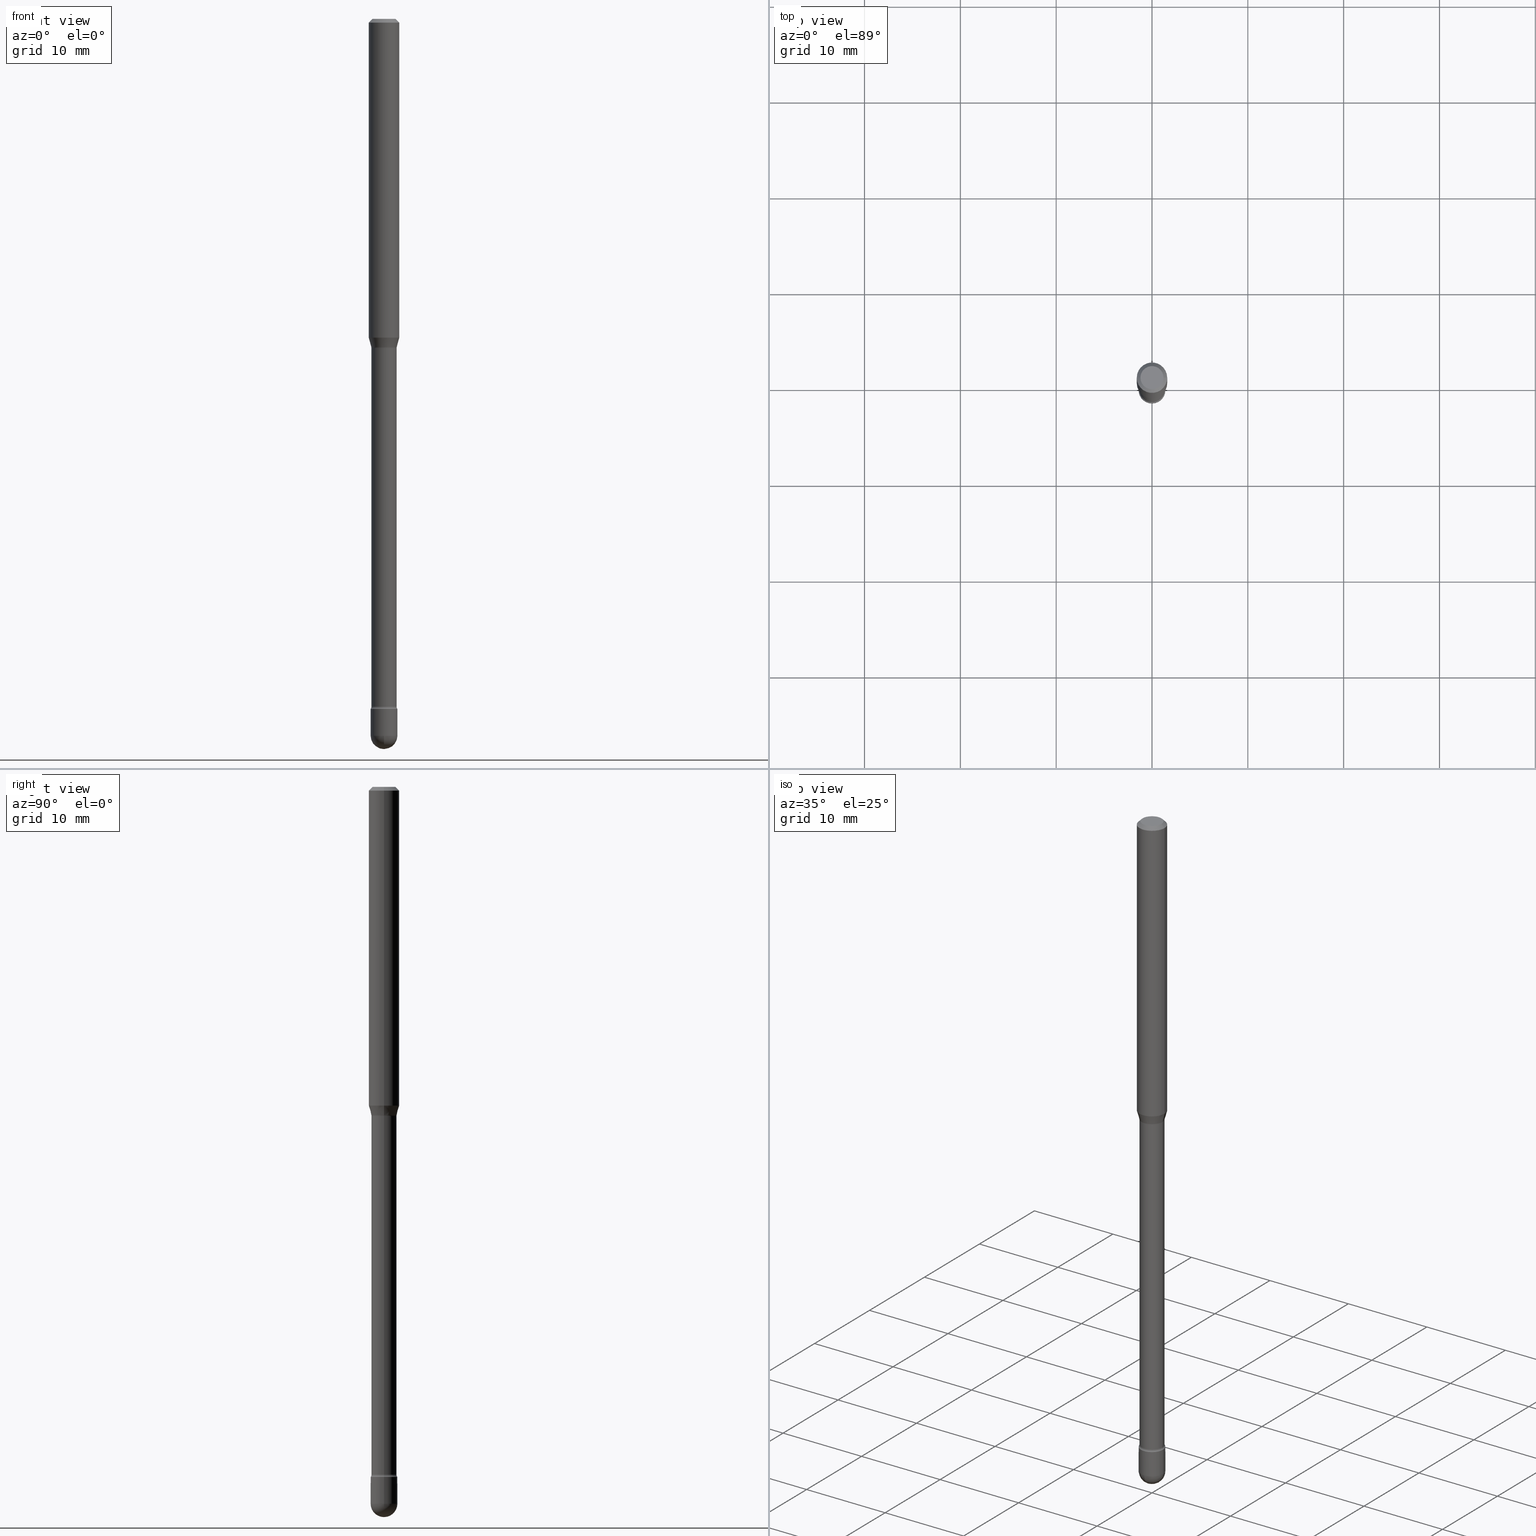
[diagram: canonical four-view strip — front | top / right | iso, engineering-drawing reading convention]
A machine part, canonical four-view strip (front | top / right | iso — engineering-drawing reading convention). The complete STEP part file that produces these views, byte-faithful:
ISO-10303-21;
HEADER;
FILE_DESCRIPTION (( 'STEP AP203' ),
    '1' );
FILE_NAME ('09575.STEP',
    '2024-04-10T00:57:56',
    ( '' ),
    ( '' ),
    'SwSTEP 2.0',
    'SolidWorks 2023',
    '' );
FILE_SCHEMA (( 'CONFIG_CONTROL_DESIGN' ));
ENDSEC;

DATA;
#1 = DIRECTION ( 'NONE',  ( -2.445468806185136877E-29, 3.491481338843145188E-15, 1.000000000000000000 ) ) ;
#2 = VERTEX_POINT ( 'NONE', #297 ) ;
#3 = APPROVAL_ROLE ( '' ) ;
#4 = ORIENTED_EDGE ( 'NONE', *, *, #347, .F. ) ;
#5 = CIRCLE ( 'NONE', #64, 0.01499999999999994220 ) ;
#6 = ADVANCED_FACE ( 'NONE', ( #254 ), #86, .T. ) ;
#7 = ORIENTED_EDGE ( 'NONE', *, *, #258, .T. ) ;
#8 = APPROVAL_STATUS ( 'not_yet_approved' ) ;
#9 = CARTESIAN_POINT ( 'NONE',  ( 7.201905634215227412E-29, -1.028241254289306465E-14, -2.945000000000000284 ) ) ;
#10 = EDGE_CURVE ( 'NONE', #73, #232, #383, .T. ) ;
#11 = PERSON_AND_ORGANIZATION ( #200, #53 ) ;
#12 = CARTESIAN_POINT ( 'NONE',  ( -0.06250000000000000000, -1.868482720859080812E-15, -0.01500000000000008271 ) ) ;
#13 = VERTEX_POINT ( 'NONE', #343 ) ;
#14 = PRODUCT_RELATED_PRODUCT_CATEGORY ( 'detail', '', ( #313 ) ) ;
#15 = CALENDAR_DATE ( 2024, 9, 4 ) ;
#16 = EDGE_CURVE ( 'NONE', #36, #512, #562, .T. ) ;
#17 = DIRECTION ( 'NONE',  ( -2.445468806185136597E-29, 3.491481338843145583E-15, 1.000000000000000000 ) ) ;
#18 = APPROVAL_STATUS ( 'not_yet_approved' ) ;
#19 = DIRECTION ( 'NONE',  ( -2.445468806185136597E-29, 3.491481338843145583E-15, 1.000000000000000000 ) ) ;
#20 = VECTOR ( 'NONE', #230, 39.37007874015748143 ) ;
#21 = ORIENTED_EDGE ( 'NONE', *, *, #16, .T. ) ;
#22 = CARTESIAN_POINT ( 'NONE',  ( 0.06670000000000017581, -1.033133974379752001E-14, -2.825613307291703347 ) ) ;
#23 = APPROVAL_DATE_TIME ( #281, #132 ) ;
#24 = CARTESIAN_POINT ( 'NONE',  ( 0.06250000000000000000, -5.009206808691031841E-15, -1.309693851278255883 ) ) ;
#25 = DIRECTION ( 'NONE',  ( -2.445468806185136597E-29, 3.491481338843145583E-15, 1.000000000000000000 ) ) ;
#26 = AXIS2_PLACEMENT_3D ( 'NONE', #22, #440, #317 ) ;
#27 = PRODUCT_DEFINITION ( 'UNKNOWN', '', #449, #61 ) ;
#28 = AXIS2_PLACEMENT_3D ( 'NONE', #303, #179, #463 ) ;
#29 = DIRECTION ( 'NONE',  ( 1.000000000000000000, -6.982962677686276177E-15, 0.000000000000000000 ) ) ;
#30 = ADVANCED_FACE ( 'NONE', ( #91 ), #263, .T. ) ;
#31 = EDGE_CURVE ( 'NONE', #560, #232, #65, .T. ) ;
#32 = DIRECTION ( 'NONE',  ( 6.982962677686265922E-15, 1.000000000000000000, 0.000000000000000000 ) ) ;
#33 = CARTESIAN_POINT ( 'NONE',  ( 6.932904065534862655E-29, -9.898349595620319665E-15, -2.835000000000000409 ) ) ;
#34 = EDGE_LOOP ( 'NONE', ( #212, #280, #450, #501 ) ) ;
#35 =( GEOMETRIC_REPRESENTATION_CONTEXT ( 3 ) GLOBAL_UNCERTAINTY_ASSIGNED_CONTEXT ( ( #167 ) ) GLOBAL_UNIT_ASSIGNED_CONTEXT ( ( #307, #187, #445 ) ) REPRESENTATION_CONTEXT ( 'NONE', 'WORKASPACE' ) );
#36 = VERTEX_POINT ( 'NONE', #346 ) ;
#37 = DIRECTION ( 'NONE',  ( -1.000000000000000000, 6.982962677686265922E-15, -4.883557194083112901E-29 ) ) ;
#38 = CIRCLE ( 'NONE', #28, 0.04749999999999999362 ) ;
#39 = ORIENTED_EDGE ( 'NONE', *, *, #16, .F. ) ;
#40 = ORIENTED_EDGE ( 'NONE', *, *, #460, .T. ) ;
#41 = CYLINDRICAL_SURFACE ( 'NONE', #182, 0.06250000000000000000 ) ;
#42 = DIRECTION ( 'NONE',  ( -2.445468806185136597E-29, 3.491481338843145583E-15, 1.000000000000000000 ) ) ;
#43 = ORIENTED_EDGE ( 'NONE', *, *, #411, .T. ) ;
#44 = DIRECTION ( 'NONE',  ( -2.445468806185136597E-29, 3.491481338843145583E-15, 1.000000000000000000 ) ) ;
#45 = ORIENTED_EDGE ( 'NONE', *, *, #388, .F. ) ;
#46 = DIRECTION ( 'NONE',  ( 6.982962677686265922E-15, 1.000000000000000000, 0.000000000000000000 ) ) ;
#47 = DIRECTION ( 'NONE',  ( -1.000000000000000000, 6.982962677686266711E-15, 0.000000000000000000 ) ) ;
#48 = LINE ( 'NONE', #217, #150 ) ;
#49 = CARTESIAN_POINT ( 'NONE',  ( 0.06250000000000000000, -4.364351673553899931E-16, 4.780733988912490708E-16 ) ) ;
#50 = PERSON_AND_ORGANIZATION_ROLE ( 'creator' ) ;
#51 = DIRECTION ( 'NONE',  ( 1.000000000000000000, -6.982962677686269866E-15, 4.883557194083114022E-29 ) ) ;
#52 = AXIS2_PLACEMENT_3D ( 'NONE', #195, #242, #309 ) ;
#53 = ORGANIZATION ( 'UNSPECIFIED', 'UNSPECIFIED', '' ) ;
#54 = PERSON_AND_ORGANIZATION_ROLE ( 'design_owner' ) ;
#55 = PLANE ( 'NONE',  #52 ) ;
#56 = EDGE_CURVE ( 'NONE', #332, #171, #523, .T. ) ;
#57 = ORIENTED_EDGE ( 'NONE', *, *, #468, .T. ) ;
#58 = DATE_AND_TIME ( #308, #543 ) ;
#59 = CARTESIAN_POINT ( 'NONE',  ( -0.06669999999999999540, -4.246462736264336838E-15, -1.351974787463810834 ) ) ;
#60 = AXIS2_PLACEMENT_3D ( 'NONE', #245, #246, #75 ) ;
#61 = DESIGN_CONTEXT ( 'detailed design', #547, 'design' ) ;
#62 = CALENDAR_DATE ( 2024, 9, 4 ) ;
#63 = DIRECTION ( 'NONE',  ( 0.2588190451025198513, 1.565188264969633801E-15, 0.9659258262890685343 ) ) ;
#64 = AXIS2_PLACEMENT_3D ( 'NONE', #415, #329, #209 ) ;
#65 = CIRCLE ( 'NONE', #421, 0.05500000000000000028 ) ;
#66 = CARTESIAN_POINT ( 'NONE',  ( -0.04749999999999999362, 3.578768372314208041E-16, -8.274703207154778150E-17 ) ) ;
#67 = CIRCLE ( 'NONE', #241, 0.05500000000000000028 ) ;
#68 = FACE_OUTER_BOUND ( 'NONE', #292, .T. ) ;
#69 = EDGE_CURVE ( 'NONE', #341, #479, #478, .T. ) ;
#70 = DIRECTION ( 'NONE',  ( 1.000000000000000000, -6.982962677686261189E-15, 0.000000000000000000 ) ) ;
#71 = ORIENTED_EDGE ( 'NONE', *, *, #455, .F. ) ;
#72 = CARTESIAN_POINT ( 'NONE',  ( -1.169113584055446105E-44, 1.669184350826100908E-30, 4.780733988912460139E-16 ) ) ;
#73 = VERTEX_POINT ( 'NONE', #181 ) ;
#74 = VECTOR ( 'NONE', #302, 39.37007874015748143 ) ;
#75 = DIRECTION ( 'NONE',  ( 1.000000000000000000, -6.982962677686279332E-15, 0.000000000000000000 ) ) ;
#76 = ORIENTED_EDGE ( 'NONE', *, *, #196, .F. ) ;
#77 = DIRECTION ( 'NONE',  ( 1.000000000000000000, -6.982962677686276177E-15, 0.000000000000000000 ) ) ;
#78 = ORIENTED_EDGE ( 'NONE', *, *, #126, .F. ) ;
#79 = DIRECTION ( 'NONE',  ( -6.982962677686266711E-15, -1.000000000000000000, 3.491481338843145583E-15 ) ) ;
#80 = ORIENTED_EDGE ( 'NONE', *, *, #69, .F. ) ;
#81 = LOCAL_TIME ( 20, 57, 56.00000000000000000, #183 ) ;
#82 = EDGE_LOOP ( 'NONE', ( #558, #40, #320, #80 ) ) ;
#83 = AXIS2_PLACEMENT_3D ( 'NONE', #213, #380, #555 ) ;
#84 = EDGE_LOOP ( 'NONE', ( #78, #529, #43, #88 ) ) ;
#85 = CARTESIAN_POINT ( 'NONE',  ( 3.306212169491528770E-29, -4.720394741016323531E-15, -1.351974787463810834 ) ) ;
#86 = CYLINDRICAL_SURFACE ( 'NONE', #376, 0.05170000000000010698 ) ;
#87 = LINE ( 'NONE', #340, #243 ) ;
#88 = ORIENTED_EDGE ( 'NONE', *, *, #293, .T. ) ;
#89 = VERTEX_POINT ( 'NONE', #348 ) ;
#90 = CARTESIAN_POINT ( 'NONE',  ( 0.04749999999999999362, -4.035134999187581581E-16, -8.274703207154280181E-17 ) ) ;
#91 = FACE_OUTER_BOUND ( 'NONE', #266, .T. ) ;
#92 = CIRCLE ( 'NONE', #270, 0.05169999999999998902 ) ;
#93 = EDGE_CURVE ( 'NONE', #528, #479, #526, .T. ) ;
#94 = DIRECTION ( 'NONE',  ( -2.445468806185136597E-29, 3.491481338843145583E-15, 1.000000000000000000 ) ) ;
#95 = LOCAL_TIME ( 20, 57, 56.00000000000000000, #324 ) ;
#96 = CARTESIAN_POINT ( 'NONE',  ( -0.05500000000000000028, 3.907985046680551042E-16, -2.705414299640198362E-30 ) ) ;
#97 = EDGE_CURVE ( 'NONE', #99, #479, #102, .T. ) ;
#98 = DIRECTION ( 'NONE',  ( 0.7071067811865475727, -7.319954787623256045E-15, -0.7071067811865474617 ) ) ;
#99 = VERTEX_POINT ( 'NONE', #12 ) ;
#100 = PERSON_AND_ORGANIZATION ( #200, #53 ) ;
#101 = DIRECTION ( 'NONE',  ( 1.000000000000000000, -6.982962677686266711E-15, 4.876176775795935793E-29 ) ) ;
#102 = CIRCLE ( 'NONE', #288, 0.06250000000000000000 ) ;
#103 = DIRECTION ( 'NONE',  ( 1.000000000000000000, 0.000000000000000000, 0.000000000000000000 ) ) ;
#104 = CARTESIAN_POINT ( 'NONE',  ( 0.06250000000000000000, -4.811533449433681963E-16, -0.01500000000000008271 ) ) ;
#105 = ORIENTED_EDGE ( 'NONE', *, *, #196, .T. ) ;
#106 = CONICAL_SURFACE ( 'NONE', #186, 0.06250000000000000000, 0.7853981633974483900 ) ;
#107 = VECTOR ( 'NONE', #160, 39.37007874015748143 ) ;
#108 = PERSON_AND_ORGANIZATION ( #200, #53 ) ;
#109 = CARTESIAN_POINT ( 'NONE',  ( 6.932904065534862655E-29, -9.898349595620319665E-15, -2.835000000000000409 ) ) ;
#110 = APPROVAL_ROLE ( '' ) ;
#111 = CARTESIAN_POINT ( 'NONE',  ( 6.909949201323477273E-29, -9.865576133195845499E-15, -2.825613307291703347 ) ) ;
#112 = CALENDAR_DATE ( 2024, 9, 4 ) ;
#113 = DIRECTION ( 'NONE',  ( -1.000000000000000000, 6.982962677686265922E-15, -4.883557194083112901E-29 ) ) ;
#114 = ORIENTED_EDGE ( 'NONE', *, *, #199, .T. ) ;
#115 = CARTESIAN_POINT ( 'NONE',  ( 3.668203209277725232E-31, -5.237222008264747365E-17, -0.01500000000000008271 ) ) ;
#116 = DIMENSIONAL_EXPONENTS ( 1.000000000000000000, 0.000000000000000000, 0.000000000000000000, 0.000000000000000000, 0.000000000000000000, 0.000000000000000000, 0.000000000000000000 ) ;
#117 = DIRECTION ( 'NONE',  ( -2.445468806185136597E-29, 3.491481338843145583E-15, 1.000000000000000000 ) ) ;
#118 = CC_DESIGN_DATE_AND_TIME_ASSIGNMENT ( #443, #190, ( #469 ) ) ;
#119 = EDGE_CURVE ( 'NONE', #13, #73, #498, .T. ) ;
#120 = CARTESIAN_POINT ( 'NONE',  ( 7.201905634215227412E-29, -1.028241254289306465E-14, -2.945000000000000284 ) ) ;
#121 = ORIENTED_EDGE ( 'NONE', *, *, #177, .T. ) ;
#122 = TOROIDAL_SURFACE ( 'NONE', #448, 0.06670000000000017581, 0.01499999999999993526 ) ;
#123 = AXIS2_PLACEMENT_3D ( 'NONE', #441, #482, #103 ) ;
#124 = CIRCLE ( 'NONE', #306, 0.06250000000000000000 ) ;
#125 = CARTESIAN_POINT ( 'NONE',  ( 3.296718160972856588E-29, -4.706839813024632944E-15, -1.348092501787272912 ) ) ;
#126 = EDGE_CURVE ( 'NONE', #332, #512, #358, .T. ) ;
#127 = DIRECTION ( 'NONE',  ( -2.445468806185136597E-29, 3.491481338843145583E-15, 1.000000000000000000 ) ) ;
#128 = CARTESIAN_POINT ( 'NONE',  ( 6.932904065534862655E-29, -9.898349595620319665E-15, -2.835000000000000409 ) ) ;
#129 = EDGE_LOOP ( 'NONE', ( #224, #524, #344, #45, #256 ) ) ;
#130 = VERTEX_POINT ( 'NONE', #145 ) ;
#131 = CARTESIAN_POINT ( 'NONE',  ( 0.06250000000000000000, -4.888073874380391431E-16, -0.01500000000000008271 ) ) ;
#132 = APPROVAL ( #18, 'UNSPECIFIED' ) ;
#133 = ORIENTED_EDGE ( 'NONE', *, *, #406, .F. ) ;
#134 = CARTESIAN_POINT ( 'NONE',  ( 7.201905634215227412E-29, -1.028241254289306465E-14, -2.945000000000000284 ) ) ;
#135 = ORIENTED_EDGE ( 'NONE', *, *, #429, .F. ) ;
#136 = ADVANCED_FACE ( 'NONE', ( #496 ), #532, .T. ) ;
#137 = DIRECTION ( 'NONE',  ( -2.445468806185136597E-29, 3.491481338843145583E-15, 1.000000000000000000 ) ) ;
#138 = CARTESIAN_POINT ( 'NONE',  ( -0.05221111260566397433, -4.335857545145562056E-15, -1.348092501787272912 ) ) ;
#139 = AXIS2_PLACEMENT_3D ( 'NONE', #59, #267, #442 ) ;
#140 = APPROVAL_PERSON_ORGANIZATION ( #108, #257, #3 ) ;
#141 = CALENDAR_DATE ( 2024, 9, 4 ) ;
#142 = ORIENTED_EDGE ( 'NONE', *, *, #93, .T. ) ;
#143 = CIRCLE ( 'NONE', #174, 0.01500000000000002720 ) ;
#144 = APPROVAL_DATE_TIME ( #58, #257 ) ;
#145 = CARTESIAN_POINT ( 'NONE',  ( 0.05500000000000000028, -1.047444401652943635E-14, -2.945000000000000284 ) ) ;
#146 = FACE_OUTER_BOUND ( 'NONE', #84, .T. ) ;
#147 = EDGE_LOOP ( 'NONE', ( #565, #176 ) ) ;
#148 = AXIS2_PLACEMENT_3D ( 'NONE', #517, #262, #47 ) ;
#149 = DIRECTION ( 'NONE',  ( 1.000000000000000000, -6.982962677686274599E-15, 4.883557194083115143E-29 ) ) ;
#150 = VECTOR ( 'NONE', #1, 39.37007874015748143 ) ;
#151 = CARTESIAN_POINT ( 'NONE',  ( 0.000000000000000000, 0.000000000000000000, 0.000000000000000000 ) ) ;
#152 = ORIENTED_EDGE ( 'NONE', *, *, #154, .T. ) ;
#153 = ORIENTED_EDGE ( 'NONE', *, *, #460, .F. ) ;
#154 = EDGE_CURVE ( 'NONE', #549, #375, #192, .T. ) ;
#155 = DIRECTION ( 'NONE',  ( 1.000000000000000000, -6.982962677686276177E-15, 0.000000000000000000 ) ) ;
#156 = CARTESIAN_POINT ( 'NONE',  ( 3.306212169491528770E-29, -4.720394741016323531E-15, -1.351974787463810834 ) ) ;
#157 = APPROVAL_PERSON_ORGANIZATION ( #495, #515, #110 ) ;
#158 = AXIS2_PLACEMENT_3D ( 'NONE', #500, #117, #548 ) ;
#159 = SPHERICAL_SURFACE ( 'NONE', #203, 0.05499999999999991007 ) ;
#160 = DIRECTION ( 'NONE',  ( -2.445468806185136877E-29, 3.491481338843145188E-15, 1.000000000000000000 ) ) ;
#161 = VERTEX_POINT ( 'NONE', #239 ) ;
#162 = DIRECTION ( 'NONE',  ( -2.445468806185136597E-29, 3.491481338843145583E-15, 1.000000000000000000 ) ) ;
#163 = AXIS2_PLACEMENT_3D ( 'NONE', #420, #454, #201 ) ;
#164 = ADVANCED_FACE ( 'NONE', ( #235 ), #55, .F. ) ;
#165 = APPROVAL_PERSON_ORGANIZATION ( #407, #132, #318 ) ;
#166 = CARTESIAN_POINT ( 'NONE',  ( 6.909949201323477273E-29, -9.865576133195845499E-15, -2.825613307291703347 ) ) ;
#167 = UNCERTAINTY_MEASURE_WITH_UNIT (LENGTH_MEASURE( 1.000000000000000082E-05 ), #307, 'distance_accuracy_value', 'NONE');
#168 = ADVANCED_FACE ( 'NONE', ( #269 ), #538, .T. ) ;
#169 = FACE_OUTER_BOUND ( 'NONE', #34, .T. ) ;
#170 = ORIENTED_EDGE ( 'NONE', *, *, #258, .F. ) ;
#171 = VERTEX_POINT ( 'NONE', #438 ) ;
#172 = DIRECTION ( 'NONE',  ( 1.000000000000000000, -6.982962677686266711E-15, 4.852736867747366207E-29 ) ) ;
#173 = ORIENTED_EDGE ( 'NONE', *, *, #370, .F. ) ;
#174 = AXIS2_PLACEMENT_3D ( 'NONE', #522, #79, #519 ) ;
#175 = FACE_OUTER_BOUND ( 'NONE', #436, .T. ) ;
#176 = ORIENTED_EDGE ( 'NONE', *, *, #429, .T. ) ;
#177 = EDGE_CURVE ( 'NONE', #375, #161, #322, .T. ) ;
#178 = ORIENTED_EDGE ( 'NONE', *, *, #455, .T. ) ;
#179 = DIRECTION ( 'NONE',  ( -2.445468806185136597E-29, 3.491481338843145583E-15, 1.000000000000000000 ) ) ;
#180 = DIRECTION ( 'NONE',  ( 1.000000000000000000, -6.982962677686279332E-15, 0.000000000000000000 ) ) ;
#181 = CARTESIAN_POINT ( 'NONE',  ( -0.05500000000000000028, -9.699582564588636708E-15, -2.945000000000000284 ) ) ;
#182 = AXIS2_PLACEMENT_3D ( 'NONE', #561, #427, #172 ) ;
#183 = COORDINATED_UNIVERSAL_TIME_OFFSET ( 5, 0, .BEHIND. ) ;
#184 = DIRECTION ( 'NONE',  ( -2.438088387897960049E-29, 3.491481338843145188E-15, 1.000000000000000000 ) ) ;
#185 = ORIENTED_EDGE ( 'NONE', *, *, #339, .T. ) ;
#186 = AXIS2_PLACEMENT_3D ( 'NONE', #540, #291, #452 ) ;
#187 =( NAMED_UNIT ( * ) PLANE_ANGLE_UNIT ( ) SI_UNIT ( $, .RADIAN. ) );
#188 = CARTESIAN_POINT ( 'NONE',  ( -3.907985046679827755E-16, -0.05500000000001023515, -2.945000000000000284 ) ) ;
#189 = CC_DESIGN_PERSON_AND_ORGANIZATION_ASSIGNMENT ( #100, #404, ( #449 ) ) ;
#190 = DATE_TIME_ROLE ( 'classification_date' ) ;
#191 = DIRECTION ( 'NONE',  ( -2.445468806185136597E-29, 3.491481338843145583E-15, 1.000000000000000000 ) ) ;
#192 = CIRCLE ( 'NONE', #26, 0.01499999999999994220 ) ;
#193 = ORIENTED_EDGE ( 'NONE', *, *, #397, .T. ) ;
#194 = VERTEX_POINT ( 'NONE', #188 ) ;
#195 = CARTESIAN_POINT ( 'NONE',  ( 3.840629472728140100E-16, 0.05499999999999010541, -2.835000000000000409 ) ) ;
#196 = EDGE_CURVE ( 'NONE', #260, #99, #198, .T. ) ;
#197 = AXIS2_PLACEMENT_3D ( 'NONE', #166, #227, #474 ) ;
#198 = LINE ( 'NONE', #355, #395 ) ;
#199 = EDGE_CURVE ( 'NONE', #556, #341, #362, .T. ) ;
#200 = PERSON ( 'UNSPECIFIED', 'UNSPECIFIED', 'UNSPECIFIED', ('UNSPECIFIED'), ('UNSPECIFIED'), ('UNSPECIFIED') ) ;
#201 = DIRECTION ( 'NONE',  ( -1.000000000000000000, 6.982962677686265922E-15, -4.876176775795935793E-29 ) ) ;
#202 = CC_DESIGN_PERSON_AND_ORGANIZATION_ASSIGNMENT ( #391, #54, ( #313 ) ) ;
#203 = AXIS2_PLACEMENT_3D ( 'NONE', #120, #113, #285 ) ;
#204 = DIRECTION ( 'NONE',  ( -2.445468806185136597E-29, 3.491481338843145583E-15, 1.000000000000000000 ) ) ;
#205 = CIRCLE ( 'NONE', #361, 0.05500000000000000028 ) ;
#206 = CARTESIAN_POINT ( 'NONE',  ( 6.909949201323477273E-29, -9.865576133195845499E-15, -2.825613307291703347 ) ) ;
#207 = EDGE_LOOP ( 'NONE', ( #135, #142, #251, #76 ) ) ;
#208 = FACE_OUTER_BOUND ( 'NONE', #147, .T. ) ;
#209 = DIRECTION ( 'NONE',  ( -1.000000000000000000, 7.105427357601017636E-15, 0.000000000000000000 ) ) ;
#210 = CIRCLE ( 'NONE', #431, 0.05500000000000000028 ) ;
#211 = CONICAL_SURFACE ( 'NONE', #336, 0.05221111260566397433, 0.2617993877991485197 ) ;
#212 = ORIENTED_EDGE ( 'NONE', *, *, #527, .F. ) ;
#213 = CARTESIAN_POINT ( 'NONE',  ( 3.296718160972856588E-29, -4.706839813024632944E-15, -1.348092501787272912 ) ) ;
#214 = ORIENTED_EDGE ( 'NONE', *, *, #468, .F. ) ;
#215 = CIRCLE ( 'NONE', #371, 0.05169999999999998902 ) ;
#216 = PRODUCT_DEFINITION_SHAPE ( 'NONE', 'NONE',  #27 ) ;
#217 = CARTESIAN_POINT ( 'NONE',  ( -0.06250000000000000000, 4.440892098500642925E-16, 4.780733988912429571E-16 ) ) ;
#218 = DIRECTION ( 'NONE',  ( 1.000000000000000000, -6.982962677686266711E-15, 4.927827573631261358E-29 ) ) ;
#219 = CC_DESIGN_PERSON_AND_ORGANIZATION_ASSIGNMENT ( #11, #234, ( #469 ) ) ;
#220 = ORIENTED_EDGE ( 'NONE', *, *, #424, .T. ) ;
#221 = ADVANCED_FACE ( 'NONE', ( #146 ), #368, .F. ) ;
#222 = ORIENTED_EDGE ( 'NONE', *, *, #199, .F. ) ;
#223 = DIRECTION ( 'NONE',  ( 1.000000000000000000, -6.982962677686266711E-15, 4.876176775795935793E-29 ) ) ;
#224 = ORIENTED_EDGE ( 'NONE', *, *, #119, .T. ) ;
#225 = CLOSED_SHELL ( 'NONE', ( #534, #6, #238, #333, #290, #398, #325, #551, #30, #305, #164, #494, #338, #221 ) ) ;
#226 = AXIS2_PLACEMENT_3D ( 'NONE', #476, #94, #422 ) ;
#227 = DIRECTION ( 'NONE',  ( -2.445468806185136597E-29, 3.491481338843145583E-15, 1.000000000000000000 ) ) ;
#228 = CARTESIAN_POINT ( 'NONE',  ( 6.932904065534862655E-29, -9.898349595620319665E-15, -2.835000000000000409 ) ) ;
#229 = DIRECTION ( 'NONE',  ( -1.000000000000000000, 7.105427357601001070E-15, -4.926315508542082329E-29 ) ) ;
#230 = DIRECTION ( 'NONE',  ( -2.445468806185136877E-29, 3.491481338843145188E-15, 1.000000000000000000 ) ) ;
#231 = DATE_AND_TIME ( #141, #399 ) ;
#232 = VERTEX_POINT ( 'NONE', #273 ) ;
#233 = CIRCLE ( 'NONE', #334, 0.05170000000000023882 ) ;
#234 = PERSON_AND_ORGANIZATION_ROLE ( 'classification_officer' ) ;
#235 = FACE_OUTER_BOUND ( 'NONE', #490, .T. ) ;
#236 = DATE_AND_TIME ( #62, #81 ) ;
#237 = CARTESIAN_POINT ( 'NONE',  ( 6.909949201323477273E-29, -9.865576133195845499E-15, -2.825613307291703347 ) ) ;
#238 = ADVANCED_FACE ( 'NONE', ( #357 ), #122, .F. ) ;
#239 = CARTESIAN_POINT ( 'NONE',  ( -0.05499999999999995864, -9.507551090952265005E-15, -2.835000000000000409 ) ) ;
#240 = ORIENTED_EDGE ( 'NONE', *, *, #119, .F. ) ;
#241 = AXIS2_PLACEMENT_3D ( 'NONE', #503, #162, #413 ) ;
#242 = DIRECTION ( 'NONE',  ( -2.438088387897960049E-29, 3.491481338843145188E-15, 1.000000000000000000 ) ) ;
#243 = VECTOR ( 'NONE', #252, 39.37007874015748143 ) ;
#244 = DIRECTION ( 'NONE',  ( 1.000000000000000000, -6.982962677686266711E-15, 4.852736867747366207E-29 ) ) ;
#245 = CARTESIAN_POINT ( 'NONE',  ( 7.201905634215227412E-29, -1.028241254289306465E-14, -2.945000000000000284 ) ) ;
#246 = DIRECTION ( 'NONE',  ( -2.445468806185136597E-29, 3.491481338843145583E-15, 1.000000000000000000 ) ) ;
#247 = ORIENTED_EDGE ( 'NONE', *, *, #352, .T. ) ;
#248 = CARTESIAN_POINT ( 'NONE',  ( 7.201905634215227412E-29, -1.028241254289306465E-14, -2.945000000000000284 ) ) ;
#249 = EDGE_CURVE ( 'NONE', #130, #13, #210, .T. ) ;
#250 = LINE ( 'NONE', #289, #107 ) ;
#251 = ORIENTED_EDGE ( 'NONE', *, *, #365, .T. ) ;
#252 = DIRECTION ( 'NONE',  ( -2.445468806185136877E-29, 3.491481338843145188E-15, 1.000000000000000000 ) ) ;
#253 = AXIS2_PLACEMENT_3D ( 'NONE', #488, #184, #401 ) ;
#254 = FACE_OUTER_BOUND ( 'NONE', #271, .T. ) ;
#255 = DIRECTION ( 'NONE',  ( -2.445468806185136597E-29, 3.491481338843145583E-15, 1.000000000000000000 ) ) ;
#256 = ORIENTED_EDGE ( 'NONE', *, *, #249, .T. ) ;
#257 = APPROVAL ( #349, 'UNSPECIFIED' ) ;
#258 = EDGE_CURVE ( 'NONE', #549, #36, #233, .T. ) ;
#259 = CARTESIAN_POINT ( 'NONE',  ( 2.023552857353652888E-45, -2.889097183224559242E-31, -8.274703207154537794E-17 ) ) ;
#260 = VERTEX_POINT ( 'NONE', #66 ) ;
#261 = FACE_OUTER_BOUND ( 'NONE', #301, .T. ) ;
#262 = DIRECTION ( 'NONE',  ( 2.445468806185136597E-29, -3.491481338843145583E-15, -1.000000000000000000 ) ) ;
#263 = CONICAL_SURFACE ( 'NONE', #148, 0.06250000000000000000, 0.7853981633974483900 ) ;
#264 = AXIS2_PLACEMENT_3D ( 'NONE', #85, #255, #425 ) ;
#265 = FACE_OUTER_BOUND ( 'NONE', #557, .T. ) ;
#266 = EDGE_LOOP ( 'NONE', ( #520, #379, #105, #464 ) ) ;
#267 = DIRECTION ( 'NONE',  ( 7.105427357601001859E-15, 1.000000000000000000, -3.491481338843145583E-15 ) ) ;
#268 = MECHANICAL_CONTEXT ( 'NONE', #518, 'mechanical' ) ;
#269 = FACE_OUTER_BOUND ( 'NONE', #353, .T. ) ;
#270 = AXIS2_PLACEMENT_3D ( 'NONE', #458, #418, #155 ) ;
#271 = EDGE_LOOP ( 'NONE', ( #7, #21, #381, #546 ) ) ;
#272 = CIRCLE ( 'NONE', #409, 0.05499999999999991007 ) ;
#273 = CARTESIAN_POINT ( 'NONE',  ( -0.05500000000000000028, -9.699582564588636708E-15, -2.835000000000000409 ) ) ;
#274 = ADVANCED_FACE ( 'NONE', ( #410 ), #159, .T. ) ;
#275 = SECURITY_CLASSIFICATION_LEVEL ( 'unclassified' ) ;
#276 = CARTESIAN_POINT ( 'NONE',  ( 7.201905634215227412E-29, -1.028241254289306465E-14, -2.945000000000000284 ) ) ;
#277 = ORIENTED_EDGE ( 'NONE', *, *, #97, .F. ) ;
#278 = APPROVAL_DATE_TIME ( #236, #515 ) ;
#279 = DIRECTION ( 'NONE',  ( -2.445468806185136597E-29, 3.491481338843145583E-15, 1.000000000000000000 ) ) ;
#280 = ORIENTED_EDGE ( 'NONE', *, *, #126, .T. ) ;
#281 = DATE_AND_TIME ( #112, #95 ) ;
#282 = DIRECTION ( 'NONE',  ( -2.445468806185136597E-29, 3.491481338843145583E-15, 1.000000000000000000 ) ) ;
#283 = CC_DESIGN_APPROVAL ( #257, ( #27 ) ) ;
#284 = TOROIDAL_SURFACE ( 'NONE', #197, 0.06670000000000017581, 0.01499999999999993526 ) ;
#285 = DIRECTION ( 'NONE',  ( 6.982962677686265922E-15, 1.000000000000000000, 0.000000000000000000 ) ) ;
#286 = DIRECTION ( 'NONE',  ( -2.445468806185136597E-29, 3.491481338843145583E-15, 1.000000000000000000 ) ) ;
#287 = CC_DESIGN_DATE_AND_TIME_ASSIGNMENT ( #231, #535, ( #27 ) ) ;
#288 = AXIS2_PLACEMENT_3D ( 'NONE', #311, #444, #350 ) ;
#289 = CARTESIAN_POINT ( 'NONE',  ( 0.05500000000000000028, -3.840629472727446888E-16, 2.681897226687764826E-30 ) ) ;
#290 = ADVANCED_FACE ( 'NONE', ( #484 ), #369, .T. ) ;
#291 = DIRECTION ( 'NONE',  ( 2.445468806185136597E-29, -3.491481338843145583E-15, -1.000000000000000000 ) ) ;
#292 = EDGE_LOOP ( 'NONE', ( #39, #247, #220, #4 ) ) ;
#293 = EDGE_CURVE ( 'NONE', #89, #512, #92, .T. ) ;
#294 = DIRECTION ( 'NONE',  ( 1.000000000000000000, -6.982962677686279332E-15, 0.000000000000000000 ) ) ;
#295 = CARTESIAN_POINT ( 'NONE',  ( 0.05170000000000023882, -1.022659530363222664E-14, -2.825613307291703347 ) ) ;
#296 = AXIS2_PLACEMENT_3D ( 'NONE', #151, #493, #101 ) ;
#297 = CARTESIAN_POINT ( 'NONE',  ( 7.338758125850653249E-29, -1.047107623783178152E-14, -3.000000000000000444 ) ) ;
#298 = CYLINDRICAL_SURFACE ( 'NONE', #323, 0.05500000000000000028 ) ;
#299 = EDGE_LOOP ( 'NONE', ( #541, #359, #178, #485 ) ) ;
#300 = CARTESIAN_POINT ( 'NONE',  ( 3.202815458953449812E-29, -4.572771641335639383E-15, -1.309693851278255883 ) ) ;
#301 = EDGE_LOOP ( 'NONE', ( #173, #170, #152, #121 ) ) ;
#302 = DIRECTION ( 'NONE',  ( -2.445468806185136877E-29, 3.491481338843145188E-15, 1.000000000000000000 ) ) ;
#303 = CARTESIAN_POINT ( 'NONE',  ( 2.023552857353652888E-45, -2.889097183224559242E-31, -8.274703207154537794E-17 ) ) ;
#304 = DIRECTION ( 'NONE',  ( -0.2588190451025198513, 5.211531920934540787E-15, 0.9659258262890685343 ) ) ;
#305 = ADVANCED_FACE ( 'NONE', ( #208 ), #374, .F. ) ;
#306 = AXIS2_PLACEMENT_3D ( 'NONE', #300, #387, #511 ) ;
#307 =( CONVERSION_BASED_UNIT ( 'INCH', #400 ) LENGTH_UNIT ( ) NAMED_UNIT ( #116 ) );
#308 = CALENDAR_DATE ( 2024, 9, 4 ) ;
#309 = DIRECTION ( 'NONE',  ( 1.000000000000000000, -6.982962677686265922E-15, 4.876176775795935793E-29 ) ) ;
#310 = PERSON_AND_ORGANIZATION ( #200, #53 ) ;
#311 = CARTESIAN_POINT ( 'NONE',  ( 3.668203209277725232E-31, -5.237222008264747365E-17, -0.01500000000000008271 ) ) ;
#312 = EDGE_CURVE ( 'NONE', #194, #130, #67, .T. ) ;
#313 = PRODUCT ( '09575', '09575', '', ( #268 ) ) ;
#314 = EDGE_LOOP ( 'NONE', ( #390, #537, #114, #214 ) ) ;
#315 = VECTOR ( 'NONE', #98, 39.37007874015748143 ) ;
#316 = AXIS2_PLACEMENT_3D ( 'NONE', #128, #127, #294 ) ;
#317 = DIRECTION ( 'NONE',  ( 1.000000000000000000, -6.982962677686295110E-15, 0.000000000000000000 ) ) ;
#318 = APPROVAL_ROLE ( '' ) ;
#319 = DIRECTION ( 'NONE',  ( -2.445468806185136597E-29, 3.491481338843145583E-15, 1.000000000000000000 ) ) ;
#320 = ORIENTED_EDGE ( 'NONE', *, *, #365, .F. ) ;
#321 = CARTESIAN_POINT ( 'NONE',  ( -0.05221111260566397433, -4.232269988315569411E-15, -1.348092501787272912 ) ) ;
#322 = CIRCLE ( 'NONE', #504, 0.05500000000000000028 ) ;
#323 = AXIS2_PLACEMENT_3D ( 'NONE', #471, #44, #223 ) ;
#324 = COORDINATED_UNIVERSAL_TIME_OFFSET ( 5, 0, .BEHIND. ) ;
#325 = ADVANCED_FACE ( 'NONE', ( #508 ), #525, .T. ) ;
#326 = CYLINDRICAL_SURFACE ( 'NONE', #412, 0.05170000000000010698 ) ;
#327 = CIRCLE ( 'NONE', #316, 0.05500000000000000028 ) ;
#328 = CIRCLE ( 'NONE', #60, 0.05500000000000000028 ) ;
#329 = DIRECTION ( 'NONE',  ( 7.105427357601001859E-15, 1.000000000000000000, -3.491481338843145583E-15 ) ) ;
#330 = AXIS2_PLACEMENT_3D ( 'NONE', #115, #204, #372 ) ;
#331 = DIRECTION ( 'NONE',  ( 1.000000000000000000, -6.982962677686276177E-15, 0.000000000000000000 ) ) ;
#332 = VERTEX_POINT ( 'NONE', #321 ) ;
#333 = ADVANCED_FACE ( 'NONE', ( #499 ), #106, .T. ) ;
#334 = AXIS2_PLACEMENT_3D ( 'NONE', #111, #279, #447 ) ;
#335 = FACE_OUTER_BOUND ( 'NONE', #481, .T. ) ;
#336 = AXIS2_PLACEMENT_3D ( 'NONE', #125, #461, #77 ) ;
#337 = DIRECTION ( 'NONE',  ( -2.445468806185136597E-29, 3.491481338843145583E-15, 1.000000000000000000 ) ) ;
#338 = ADVANCED_FACE ( 'NONE', ( #68 ), #326, .T. ) ;
#339 = EDGE_CURVE ( 'NONE', #73, #194, #328, .T. ) ;
#340 = CARTESIAN_POINT ( 'NONE',  ( 0.05170000000000010698, -3.610191704363790668E-16, 4.780733988912485777E-16 ) ) ;
#341 = VERTEX_POINT ( 'NONE', #24 ) ;
#342 = FACE_OUTER_BOUND ( 'NONE', #392, .T. ) ;
#343 = CARTESIAN_POINT ( 'NONE',  ( 3.840629472728163765E-16, 0.05499999999998968214, -2.945000000000000284 ) ) ;
#344 = ORIENTED_EDGE ( 'NONE', *, *, #31, .F. ) ;
#345 = DIRECTION ( 'NONE',  ( 1.000000000000000000, -6.982962677686279332E-15, 0.000000000000000000 ) ) ;
#346 = CARTESIAN_POINT ( 'NONE',  ( -0.05170000000000023882, -9.502888314880069861E-15, -2.825613307291703347 ) ) ;
#347 = EDGE_CURVE ( 'NONE', #512, #89, #215, .T. ) ;
#348 = CARTESIAN_POINT ( 'NONE',  ( 0.05169999999999998902, -5.081413911452703879E-15, -1.351974787463810834 ) ) ;
#349 = APPROVAL_STATUS ( 'not_yet_approved' ) ;
#350 = DIRECTION ( 'NONE',  ( 1.000000000000000000, -6.982962677686266711E-15, 0.000000000000000000 ) ) ;
#351 = COORDINATED_UNIVERSAL_TIME_OFFSET ( 5, 0, .BEHIND. ) ;
#352 = EDGE_CURVE ( 'NONE', #36, #549, #354, .T. ) ;
#353 = EDGE_LOOP ( 'NONE', ( #386, #423 ) ) ;
#354 = CIRCLE ( 'NONE', #486, 0.05170000000000023882 ) ;
#355 = CARTESIAN_POINT ( 'NONE',  ( -0.06250000000000000000, 3.840629472727441958E-16, -0.01500000000000008271 ) ) ;
#356 = PERSON_AND_ORGANIZATION_ROLE ( 'design_supplier' ) ;
#357 = FACE_OUTER_BOUND ( 'NONE', #299, .T. ) ;
#358 = CIRCLE ( 'NONE', #139, 0.01500000000000002720 ) ;
#359 = ORIENTED_EDGE ( 'NONE', *, *, #370, .T. ) ;
#360 = COORDINATED_UNIVERSAL_TIME_OFFSET ( 5, 0, .BEHIND. ) ;
#361 = AXIS2_PLACEMENT_3D ( 'NONE', #33, #337, #345 ) ;
#362 = LINE ( 'NONE', #394, #465 ) ;
#363 = MANIFOLD_SOLID_BREP ( 'Body-Move/Copy2[2]', #225 ) ;
#364 = DIRECTION ( 'NONE',  ( 1.000000000000000000, -6.982962677686279332E-15, 0.000000000000000000 ) ) ;
#365 = EDGE_CURVE ( 'NONE', #479, #99, #559, .T. ) ;
#366 = MANIFOLD_SOLID_BREP ( 'Body-Move/Copy2[1]', #457 ) ;
#367 = DIRECTION ( 'NONE',  ( -2.445468806185136597E-29, 3.491481338843145583E-15, 1.000000000000000000 ) ) ;
#368 = TOROIDAL_SURFACE ( 'NONE', #491, 0.06669999999999999540, 0.01500000000000002720 ) ;
#369 = CYLINDRICAL_SURFACE ( 'NONE', #514, 0.06250000000000000000 ) ;
#370 = EDGE_CURVE ( 'NONE', #36, #161, #5, .T. ) ;
#371 = AXIS2_PLACEMENT_3D ( 'NONE', #156, #25, #29 ) ;
#372 = DIRECTION ( 'NONE',  ( 1.000000000000000000, -6.982962677686266711E-15, 0.000000000000000000 ) ) ;
#373 = ORIENTED_EDGE ( 'NONE', *, *, #69, .T. ) ;
#374 = PLANE ( 'NONE',  #163 ) ;
#375 = VERTEX_POINT ( 'NONE', #456 ) ;
#376 = AXIS2_PLACEMENT_3D ( 'NONE', #426, #42, #218 ) ;
#377 = CARTESIAN_POINT ( 'NONE',  ( 3.296718160972856588E-29, -4.706839813024632944E-15, -1.348092501787272912 ) ) ;
#378 = EDGE_CURVE ( 'NONE', #556, #332, #489, .T. ) ;
#379 = ORIENTED_EDGE ( 'NONE', *, *, #462, .F. ) ;
#380 = DIRECTION ( 'NONE',  ( -2.445468806185136597E-29, 3.491481338843145583E-15, 1.000000000000000000 ) ) ;
#381 = ORIENTED_EDGE ( 'NONE', *, *, #293, .F. ) ;
#382 = CARTESIAN_POINT ( 'NONE',  ( 7.201905634215227412E-29, -1.028241254289306465E-14, -2.945000000000000284 ) ) ;
#383 = LINE ( 'NONE', #96, #74 ) ;
#384 = CC_DESIGN_PERSON_AND_ORGANIZATION_ASSIGNMENT ( #310, #50, ( #27 ) ) ;
#385 = CARTESIAN_POINT ( 'NONE',  ( 0.05221111260566397433, -5.071428063710460129E-15, -1.348092501787272912 ) ) ;
#386 = ORIENTED_EDGE ( 'NONE', *, *, #31, .T. ) ;
#387 = DIRECTION ( 'NONE',  ( -2.445468806185136597E-29, 3.491481338843145583E-15, 1.000000000000000000 ) ) ;
#388 = EDGE_CURVE ( 'NONE', #130, #560, #250, .T. ) ;
#389 = DIRECTION ( 'NONE',  ( -2.445468806185136597E-29, 3.491481338843145583E-15, 1.000000000000000000 ) ) ;
#390 = ORIENTED_EDGE ( 'NONE', *, *, #56, .F. ) ;
#391 = PERSON_AND_ORGANIZATION ( #200, #53 ) ;
#392 = EDGE_LOOP ( 'NONE', ( #521, #185, #428, #432, #133 ) ) ;
#393 = APPLICATION_PROTOCOL_DEFINITION ( 'international standard', 'config_control_design', 1994, #518 ) ;
#394 = CARTESIAN_POINT ( 'NONE',  ( 0.05221111260566397433, -5.071428063710460129E-15, -1.348092501787272912 ) ) ;
#395 = VECTOR ( 'NONE', #531, 39.37007874015748143 ) ;
#396 = LOCAL_TIME ( 20, 57, 56.00000000000000000, #351 ) ;
#397 = EDGE_CURVE ( 'NONE', #2, #13, #272, .T. ) ;
#398 = ADVANCED_FACE ( 'NONE', ( #335 ), #211, .T. ) ;
#399 = LOCAL_TIME ( 20, 57, 56.00000000000000000, #487 ) ;
#400 = LENGTH_MEASURE_WITH_UNIT ( LENGTH_MEASURE( 0.02539999999999999897 ), #437 );
#401 = DIRECTION ( 'NONE',  ( 1.000000000000000000, -6.982962677686265922E-15, 4.876176775795935793E-29 ) ) ;
#402 = ORIENTED_EDGE ( 'NONE', *, *, #177, .F. ) ;
#403 = EDGE_LOOP ( 'NONE', ( #507, #193, #472, #414 ) ) ;
#404 = PERSON_AND_ORGANIZATION_ROLE ( 'creator' ) ;
#405 = DIRECTION ( 'NONE',  ( -2.445468806185136597E-29, 3.491481338843145583E-15, 1.000000000000000000 ) ) ;
#406 = EDGE_CURVE ( 'NONE', #232, #560, #205, .T. ) ;
#407 = PERSON_AND_ORGANIZATION ( #200, #53 ) ;
#408 = CARTESIAN_POINT ( 'NONE',  ( 3.306212169491528770E-29, -4.720394741016323531E-15, -1.351974787463810834 ) ) ;
#409 = AXIS2_PLACEMENT_3D ( 'NONE', #248, #419, #32 ) ;
#410 = FACE_OUTER_BOUND ( 'NONE', #403, .T. ) ;
#411 = EDGE_CURVE ( 'NONE', #556, #89, #143, .T. ) ;
#412 = AXIS2_PLACEMENT_3D ( 'NONE', #497, #286, #545 ) ;
#413 = DIRECTION ( 'NONE',  ( 1.000000000000000000, -6.982962677686279332E-15, 0.000000000000000000 ) ) ;
#414 = ORIENTED_EDGE ( 'NONE', *, *, #312, .F. ) ;
#415 = CARTESIAN_POINT ( 'NONE',  ( -0.06670000000000017581, -9.391644128443857228E-15, -2.825613307291703347 ) ) ;
#416 = ORIENTED_EDGE ( 'NONE', *, *, #56, .T. ) ;
#417 = CC_DESIGN_PERSON_AND_ORGANIZATION_ASSIGNMENT ( #439, #356, ( #449 ) ) ;
#418 = DIRECTION ( 'NONE',  ( -2.445468806185136597E-29, 3.491481338843145583E-15, 1.000000000000000000 ) ) ;
#419 = DIRECTION ( 'NONE',  ( 1.000000000000000000, -6.982962677686265922E-15, 4.883557194083112340E-29 ) ) ;
#420 = CARTESIAN_POINT ( 'NONE',  ( 3.316907271900976096E-16, 0.04749999999999999362, 3.181781981480094004E-17 ) ) ;
#421 = AXIS2_PLACEMENT_3D ( 'NONE', #228, #389, #180 ) ;
#422 = DIRECTION ( 'NONE',  ( 1.000000000000000000, -6.982962677686262766E-15, 0.000000000000000000 ) ) ;
#423 = ORIENTED_EDGE ( 'NONE', *, *, #406, .T. ) ;
#424 = EDGE_CURVE ( 'NONE', #549, #89, #87, .T. ) ;
#425 = DIRECTION ( 'NONE',  ( 1.000000000000000000, -6.982962677686269866E-15, 4.883557194083114022E-29 ) ) ;
#426 = CARTESIAN_POINT ( 'NONE',  ( -1.169113584055446105E-44, 1.669184350826100908E-30, 4.780733988912460139E-16 ) ) ;
#427 = DIRECTION ( 'NONE',  ( -2.445468806185136597E-29, 3.491481338843145583E-15, 1.000000000000000000 ) ) ;
#428 = ORIENTED_EDGE ( 'NONE', *, *, #312, .T. ) ;
#429 = EDGE_CURVE ( 'NONE', #528, #260, #553, .T. ) ;
#430 = DIRECTION ( 'NONE',  ( 1.000000000000000000, -6.982962677686267499E-15, 4.884662768193073002E-29 ) ) ;
#431 = AXIS2_PLACEMENT_3D ( 'NONE', #276, #19, #536 ) ;
#432 = ORIENTED_EDGE ( 'NONE', *, *, #388, .T. ) ;
#433 = CC_DESIGN_APPROVAL ( #132, ( #469 ) ) ;
#434 = AXIS2_PLACEMENT_3D ( 'NONE', #382, #37, #46 ) ;
#435 = CARTESIAN_POINT ( 'NONE',  ( -0.05170000000000010698, 3.673505943879742819E-16, 4.780733988912435487E-16 ) ) ;
#436 = EDGE_LOOP ( 'NONE', ( #153, #57, #373, #277 ) ) ;
#437 =( LENGTH_UNIT ( ) NAMED_UNIT ( * ) SI_UNIT ( $, .METRE. ) );
#438 = CARTESIAN_POINT ( 'NONE',  ( -0.06250000000000000000, -4.128682431485577556E-15, -1.309693851278255883 ) ) ;
#439 = PERSON_AND_ORGANIZATION ( #200, #53 ) ;
#440 = DIRECTION ( 'NONE',  ( -6.982962677686266711E-15, -1.000000000000000000, 3.491481338843145583E-15 ) ) ;
#441 = CARTESIAN_POINT ( 'NONE',  ( 0.000000000000000000, 0.000000000000000000, 0.000000000000000000 ) ) ;
#442 = DIRECTION ( 'NONE',  ( -1.000000000000000000, 7.105427357601009747E-15, 0.000000000000000000 ) ) ;
#443 = DATE_AND_TIME ( #15, #396 ) ;
#444 = DIRECTION ( 'NONE',  ( -2.445468806185136597E-29, 3.491481338843145583E-15, 1.000000000000000000 ) ) ;
#445 =( NAMED_UNIT ( * ) SI_UNIT ( $, .STERADIAN. ) SOLID_ANGLE_UNIT ( ) );
#446 = EDGE_CURVE ( 'NONE', #341, #171, #124, .T. ) ;
#447 = DIRECTION ( 'NONE',  ( 1.000000000000000000, -6.982962677686261189E-15, 0.000000000000000000 ) ) ;
#448 = AXIS2_PLACEMENT_3D ( 'NONE', #237, #405, #149 ) ;
#449 = PRODUCT_DEFINITION_FORMATION_WITH_SPECIFIED_SOURCE ( 'ANY', '', #313, .NOT_KNOWN. ) ;
#450 = ORIENTED_EDGE ( 'NONE', *, *, #347, .T. ) ;
#451 = AXIS2_PLACEMENT_3D ( 'NONE', #134, #229, #552 ) ;
#452 = DIRECTION ( 'NONE',  ( -1.000000000000000000, 6.982962677686266711E-15, 0.000000000000000000 ) ) ;
#453 = SHAPE_DEFINITION_REPRESENTATION ( #216, #505 ) ;
#454 = DIRECTION ( 'NONE',  ( 2.438088387897960049E-29, -3.491481338843145188E-15, -1.000000000000000000 ) ) ;
#455 = EDGE_CURVE ( 'NONE', #161, #375, #327, .T. ) ;
#456 = CARTESIAN_POINT ( 'NONE',  ( 0.05499999999999995864, -1.028241254289306465E-14, -2.835000000000000409 ) ) ;
#457 = CLOSED_SHELL ( 'NONE', ( #136, #473, #168, #274, #554 ) ) ;
#458 = CARTESIAN_POINT ( 'NONE',  ( 3.306212169491528770E-29, -4.720394741016323531E-15, -1.351974787463810834 ) ) ;
#459 = CIRCLE ( 'NONE', #226, 0.06250000000000000000 ) ;
#460 = EDGE_CURVE ( 'NONE', #171, #99, #48, .T. ) ;
#461 = DIRECTION ( 'NONE',  ( -2.445468806185136597E-29, 3.491481338843145583E-15, 1.000000000000000000 ) ) ;
#462 = EDGE_CURVE ( 'NONE', #260, #528, #38, .T. ) ;
#463 = DIRECTION ( 'NONE',  ( 1.000000000000000000, -6.982962677686267499E-15, 4.884662768193073002E-29 ) ) ;
#464 = ORIENTED_EDGE ( 'NONE', *, *, #97, .T. ) ;
#465 = VECTOR ( 'NONE', #63, 39.37007874015748143 ) ;
#466 = CC_DESIGN_SECURITY_CLASSIFICATION ( #469, ( #449 ) ) ;
#467 = CARTESIAN_POINT ( 'NONE',  ( -0.05169999999999998902, -6.925634842718109000E-15, -1.351974787463810834 ) ) ;
#468 = EDGE_CURVE ( 'NONE', #171, #341, #459, .T. ) ;
#469 = SECURITY_CLASSIFICATION ( '', '', #275 ) ;
#470 = ORIENTED_EDGE ( 'NONE', *, *, #339, .F. ) ;
#471 = CARTESIAN_POINT ( 'NONE',  ( 0.000000000000000000, 0.000000000000000000, 0.000000000000000000 ) ) ;
#472 = ORIENTED_EDGE ( 'NONE', *, *, #249, .F. ) ;
#473 = ADVANCED_FACE ( 'NONE', ( #265 ), #516, .T. ) ;
#474 = DIRECTION ( 'NONE',  ( 1.000000000000000000, -6.982962677686274599E-15, 4.883557194083115143E-29 ) ) ;
#475 = DIRECTION ( 'NONE',  ( -2.445468806185136877E-29, 3.491481338843145188E-15, 1.000000000000000000 ) ) ;
#476 = CARTESIAN_POINT ( 'NONE',  ( 3.202815458953449812E-29, -4.572771641335639383E-15, -1.309693851278255883 ) ) ;
#477 = VECTOR ( 'NONE', #475, 39.37007874015748143 ) ;
#478 = LINE ( 'NONE', #49, #20 ) ;
#479 = VERTEX_POINT ( 'NONE', #131 ) ;
#480 = AXIS2_PLACEMENT_3D ( 'NONE', #377, #282, #331 ) ;
#481 = EDGE_LOOP ( 'NONE', ( #513, #416, #510, #222 ) ) ;
#482 = DIRECTION ( 'NONE',  ( 0.000000000000000000, 0.000000000000000000, 1.000000000000000000 ) ) ;
#483 = EDGE_CURVE ( 'NONE', #2, #194, #509, .T. ) ;
#484 = FACE_OUTER_BOUND ( 'NONE', #82, .T. ) ;
#485 = ORIENTED_EDGE ( 'NONE', *, *, #154, .F. ) ;
#486 = AXIS2_PLACEMENT_3D ( 'NONE', #206, #550, #70 ) ;
#487 = COORDINATED_UNIVERSAL_TIME_OFFSET ( 5, 0, .BEHIND. ) ;
#488 = CARTESIAN_POINT ( 'NONE',  ( 6.932904065534862655E-29, -9.898349595620319665E-15, -2.835000000000000409 ) ) ;
#489 = CIRCLE ( 'NONE', #158, 0.05221111260566397433 ) ;
#490 = EDGE_LOOP ( 'NONE', ( #402, #71 ) ) ;
#491 = AXIS2_PLACEMENT_3D ( 'NONE', #408, #319, #51 ) ;
#492 = APPLICATION_PROTOCOL_DEFINITION ( 'international standard', 'config_control_design', 1994, #547 ) ;
#493 = DIRECTION ( 'NONE',  ( -2.445468806185136597E-29, 3.491481338843145583E-15, 1.000000000000000000 ) ) ;
#494 = ADVANCED_FACE ( 'NONE', ( #261 ), #284, .F. ) ;
#495 = PERSON_AND_ORGANIZATION ( #200, #53 ) ;
#496 = FACE_OUTER_BOUND ( 'NONE', #129, .T. ) ;
#497 = CARTESIAN_POINT ( 'NONE',  ( -1.169113584055446105E-44, 1.669184350826100908E-30, 4.780733988912460139E-16 ) ) ;
#498 = CIRCLE ( 'NONE', #542, 0.05500000000000000028 ) ;
#499 = FACE_OUTER_BOUND ( 'NONE', #207, .T. ) ;
#500 = CARTESIAN_POINT ( 'NONE',  ( 3.296718160972856588E-29, -4.706839813024632944E-15, -1.348092501787272912 ) ) ;
#501 = ORIENTED_EDGE ( 'NONE', *, *, #411, .F. ) ;
#502 = ORIENTED_EDGE ( 'NONE', *, *, #397, .F. ) ;
#503 = CARTESIAN_POINT ( 'NONE',  ( 7.201905634215227412E-29, -1.028241254289306465E-14, -2.945000000000000284 ) ) ;
#504 = AXIS2_PLACEMENT_3D ( 'NONE', #109, #191, #364 ) ;
#505 = ADVANCED_BREP_SHAPE_REPRESENTATION ( '09575', ( #366, #363, #123 ), #35 ) ;
#506 = CC_DESIGN_APPROVAL ( #515, ( #449 ) ) ;
#507 = ORIENTED_EDGE ( 'NONE', *, *, #483, .F. ) ;
#508 = FACE_OUTER_BOUND ( 'NONE', #314, .T. ) ;
#509 = CIRCLE ( 'NONE', #451, 0.05499999999999991007 ) ;
#510 = ORIENTED_EDGE ( 'NONE', *, *, #446, .F. ) ;
#511 = DIRECTION ( 'NONE',  ( 1.000000000000000000, -6.982962677686262766E-15, 0.000000000000000000 ) ) ;
#512 = VERTEX_POINT ( 'NONE', #467 ) ;
#513 = ORIENTED_EDGE ( 'NONE', *, *, #378, .T. ) ;
#514 = AXIS2_PLACEMENT_3D ( 'NONE', #72, #367, #244 ) ;
#515 = APPROVAL ( #8, 'UNSPECIFIED' ) ;
#516 = SPHERICAL_SURFACE ( 'NONE', #434, 0.05499999999999991007 ) ;
#517 = CARTESIAN_POINT ( 'NONE',  ( 3.668203209277725232E-31, -5.237222008264747365E-17, -0.01500000000000008271 ) ) ;
#518 = APPLICATION_CONTEXT ( 'configuration controlled 3d designs of mechanical parts and assemblies' ) ;
#519 = DIRECTION ( 'NONE',  ( 1.000000000000000000, -6.982962677686255667E-15, 0.000000000000000000 ) ) ;
#520 = ORIENTED_EDGE ( 'NONE', *, *, #93, .F. ) ;
#521 = ORIENTED_EDGE ( 'NONE', *, *, #10, .F. ) ;
#522 = CARTESIAN_POINT ( 'NONE',  ( 0.06669999999999999540, -5.186158351617998038E-15, -1.351974787463810834 ) ) ;
#523 = LINE ( 'NONE', #138, #533 ) ;
#524 = ORIENTED_EDGE ( 'NONE', *, *, #10, .T. ) ;
#525 = CONICAL_SURFACE ( 'NONE', #480, 0.05221111260566397433, 0.2617993877991485197 ) ;
#526 = LINE ( 'NONE', #104, #315 ) ;
#527 = EDGE_CURVE ( 'NONE', #332, #556, #564, .T. ) ;
#528 = VERTEX_POINT ( 'NONE', #90 ) ;
#529 = ORIENTED_EDGE ( 'NONE', *, *, #378, .F. ) ;
#530 = DIRECTION ( 'NONE',  ( 1.000000000000000000, -6.982962677686279332E-15, 0.000000000000000000 ) ) ;
#531 = DIRECTION ( 'NONE',  ( -0.7071067811865475727, 2.468850131082257455E-15, -0.7071067811865474617 ) ) ;
#532 = CYLINDRICAL_SURFACE ( 'NONE', #296, 0.05500000000000000028 ) ;
#533 = VECTOR ( 'NONE', #304, 39.37007874015748143 ) ;
#534 = ADVANCED_FACE ( 'NONE', ( #169 ), #544, .F. ) ;
#535 = DATE_TIME_ROLE ( 'creation_date' ) ;
#536 = DIRECTION ( 'NONE',  ( 1.000000000000000000, -6.982962677686279332E-15, 0.000000000000000000 ) ) ;
#537 = ORIENTED_EDGE ( 'NONE', *, *, #527, .T. ) ;
#538 = PLANE ( 'NONE',  #253 ) ;
#539 = ORIENTED_EDGE ( 'NONE', *, *, #483, .T. ) ;
#540 = CARTESIAN_POINT ( 'NONE',  ( 3.668203209277725232E-31, -5.237222008264747365E-17, -0.01500000000000008271 ) ) ;
#541 = ORIENTED_EDGE ( 'NONE', *, *, #352, .F. ) ;
#542 = AXIS2_PLACEMENT_3D ( 'NONE', #9, #17, #530 ) ;
#543 = LOCAL_TIME ( 20, 57, 56.00000000000000000, #360 ) ;
#544 = TOROIDAL_SURFACE ( 'NONE', #264, 0.06669999999999999540, 0.01500000000000002720 ) ;
#545 = DIRECTION ( 'NONE',  ( 1.000000000000000000, -6.982962677686266711E-15, 4.927827573631261358E-29 ) ) ;
#546 = ORIENTED_EDGE ( 'NONE', *, *, #424, .F. ) ;
#547 = APPLICATION_CONTEXT ( 'configuration controlled 3d designs of mechanical parts and assemblies' ) ;
#548 = DIRECTION ( 'NONE',  ( 1.000000000000000000, -6.982962677686276177E-15, 0.000000000000000000 ) ) ;
#549 = VERTEX_POINT ( 'NONE', #295 ) ;
#550 = DIRECTION ( 'NONE',  ( -2.445468806185136597E-29, 3.491481338843145583E-15, 1.000000000000000000 ) ) ;
#551 = ADVANCED_FACE ( 'NONE', ( #175 ), #41, .T. ) ;
#552 = DIRECTION ( 'NONE',  ( -7.105427357601001070E-15, -1.000000000000000000, 0.000000000000000000 ) ) ;
#553 = CIRCLE ( 'NONE', #566, 0.04749999999999999362 ) ;
#554 = ADVANCED_FACE ( 'NONE', ( #342 ), #298, .T. ) ;
#555 = DIRECTION ( 'NONE',  ( 1.000000000000000000, -6.982962677686276177E-15, 0.000000000000000000 ) ) ;
#556 = VERTEX_POINT ( 'NONE', #385 ) ;
#557 = EDGE_LOOP ( 'NONE', ( #502, #539, #470, #240 ) ) ;
#558 = ORIENTED_EDGE ( 'NONE', *, *, #446, .T. ) ;
#559 = CIRCLE ( 'NONE', #330, 0.06250000000000000000 ) ;
#560 = VERTEX_POINT ( 'NONE', #563 ) ;
#561 = CARTESIAN_POINT ( 'NONE',  ( -1.169113584055446105E-44, 1.669184350826100908E-30, 4.780733988912460139E-16 ) ) ;
#562 = LINE ( 'NONE', #435, #477 ) ;
#563 = CARTESIAN_POINT ( 'NONE',  ( 0.05500000000000000028, -1.028241254289306465E-14, -2.835000000000000409 ) ) ;
#564 = CIRCLE ( 'NONE', #83, 0.05221111260566397433 ) ;
#565 = ORIENTED_EDGE ( 'NONE', *, *, #462, .T. ) ;
#566 = AXIS2_PLACEMENT_3D ( 'NONE', #259, #137, #430 ) ;
ENDSEC;
END-ISO-10303-21;
